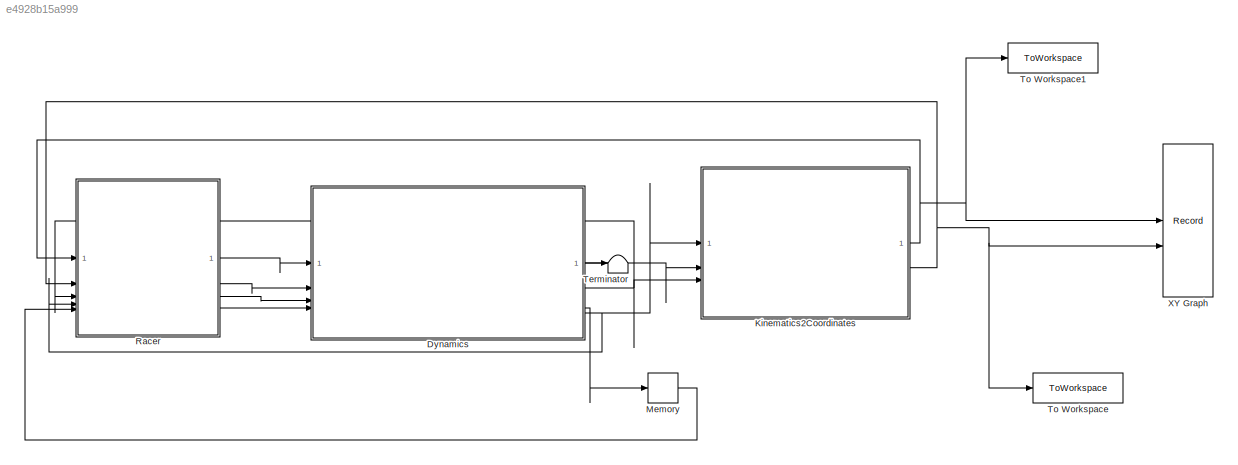
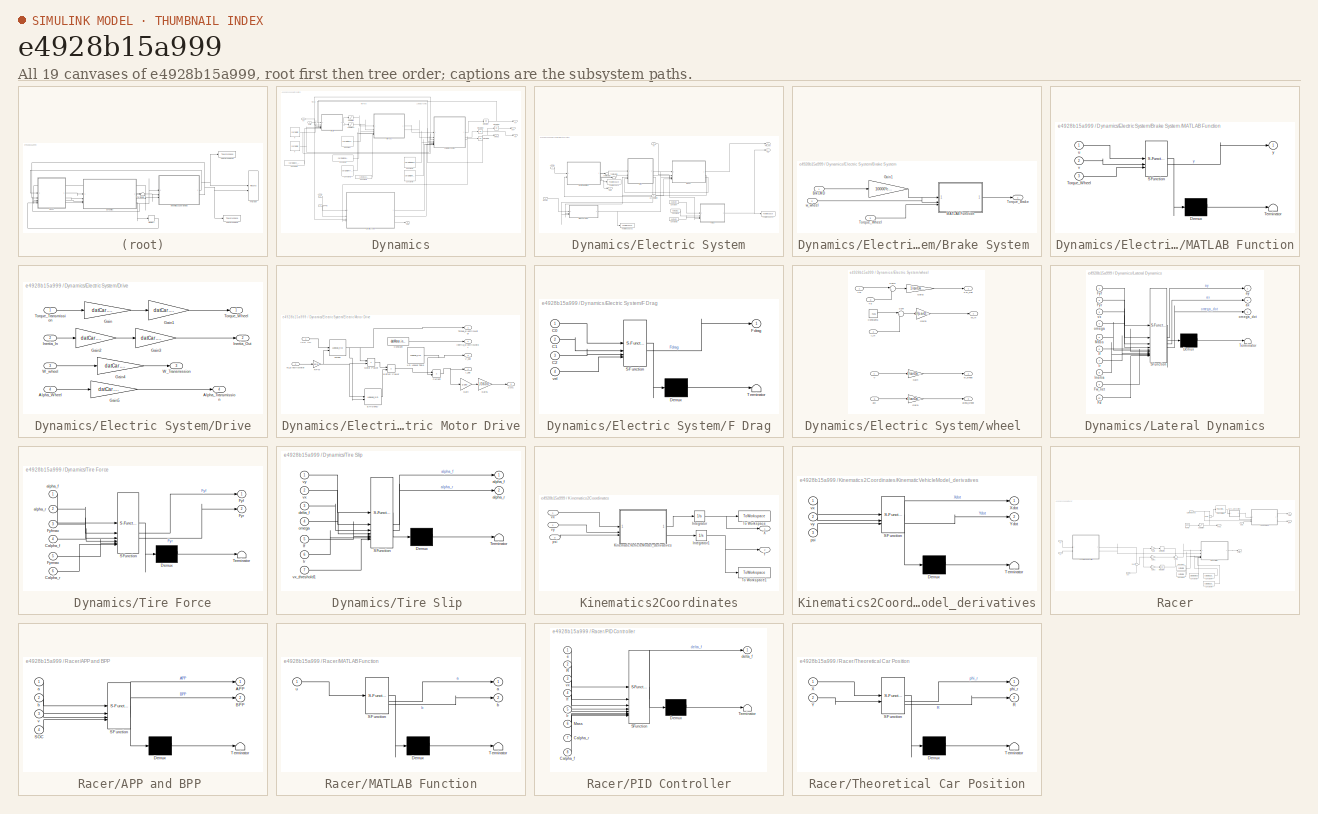
[diagram: thumbnail index - all 19 canvases of the model, root first then tree order]
MODEL slx_e4928b15a999
KIND model
CONFIG AbsTol = auto
CONFIG EnableMultiTasking = off
CONFIG FixedStep = auto
CONFIG MaxStep = auto
CONFIG MinStep = auto
CONFIG RelTol = 1e-3
CONFIG SampleTimeConstraint = Unconstrained
CONFIG SolverName = VariableStepAuto
CONFIG StartTime = 0.0
CONFIG StopTime = 6000
BLOCK [SubSystem] Dynamics
BLOCK [Inport] Dynamics/APP (%)
  Port = 3
BLOCK [Inport] Dynamics/BPP (%)
  Port = 4
BLOCK [Constant] Dynamics/Constant
  Value = carData.Fyfmax
BLOCK [Constant] Dynamics/Constant1
  Value = carData.Calpha_f
BLOCK [Constant] Dynamics/Constant2
  Value = carData.Fyrmax
BLOCK [Constant] Dynamics/Constant3
  Value = carData.Calpha_r
BLOCK [Constant] Dynamics/Constant4
  Value = carData.Mass
BLOCK [Constant] Dynamics/Constant5
  Value = carData.Inertia
BLOCK [Constant] Dynamics/Constant6
  Value = carData.vx_threshold1
BLOCK [SubSystem] Dynamics/Electric System
BLOCK [Inport] Dynamics/Electric System/APP (%)
BLOCK [Inport] Dynamics/Electric System/BPP (%)
  Port = 2
BLOCK [SubSystem] Dynamics/Electric System/Brake System 
BLOCK [Inport] Dynamics/Electric System/Brake System /BrkCMD 
BLOCK [Gain] Dynamics/Electric System/Brake System /Gain1
  Gain = 10000*carData.r
BLOCK [SubSystem] Dynamics/Electric System/Brake System /MATLAB Function
  ErrorFcn = Stateflow.Translate.translate
  PermitHierarchicalResolution = ExplicitOnly
  SFBlockType = MATLAB Function
  TreatAsAtomicUnit = on
BLOCK [Demux] Dynamics/Electric System/Brake System /MATLAB Function/ Demux 
  Outputs = 1
BLOCK [S-Function] Dynamics/Electric System/Brake System /MATLAB Function/ SFunction 
  EnableBusSupport = on
  FunctionName = sf_sfun
  PortCounts = [3 2]
  SFcnIsStateOwnerBlock = off
  SFunctionDeploymentMode = off
  Tag = Stateflow S-Function 4
BLOCK [Terminator] Dynamics/Electric System/Brake System /MATLAB Function/ Terminator 
BLOCK [Inport] Dynamics/Electric System/Brake System /MATLAB Function/Torque_Wheel
  Port = 3
BLOCK [Inport] Dynamics/Electric System/Brake System /MATLAB Function/u
BLOCK [Inport] Dynamics/Electric System/Brake System /MATLAB Function/v
  Port = 2
BLOCK [Outport] Dynamics/Electric System/Brake System /MATLAB Function/y
BLOCK [Outport] Dynamics/Electric System/Brake System /Torque_Brake 
  VectorParamsAs1DForOutWhenUnconnected = off
BLOCK [Inport] Dynamics/Electric System/Brake System /Torque_Wheel
  Port = 3
BLOCK [Inport] Dynamics/Electric System/Brake System /w_wheel 
  Port = 2
BLOCK [Constant] Dynamics/Electric System/Constant
  Value = datCar.C0
BLOCK [Constant] Dynamics/Electric System/Constant1
  Value = datCar.C1
BLOCK [Constant] Dynamics/Electric System/Constant2
  Value = datCar.C2
BLOCK [SubSystem] Dynamics/Electric System/Drive
BLOCK [Outport] Dynamics/Electric System/Drive/Alpha_Transmission
  Port = 4
BLOCK [Inport] Dynamics/Electric System/Drive/Alpha_Wheel
  Port = 4
BLOCK [Gain] Dynamics/Electric System/Drive/Gain
  Gain = datCar.FDRatio
BLOCK [Gain] Dynamics/Electric System/Drive/Gain1
  Gain = datCar.FDeta
BLOCK [Gain] Dynamics/Electric System/Drive/Gain2
  Gain = datCar.FDeta
BLOCK [Gain] Dynamics/Electric System/Drive/Gain3
  Gain = datCar.FDeta
BLOCK [Gain] Dynamics/Electric System/Drive/Gain4
  Gain = datCar.FDRatio
BLOCK [Gain] Dynamics/Electric System/Drive/Gain5
  Gain = datCar.FDRatio
BLOCK [Inport] Dynamics/Electric System/Drive/Inertia_In
  Port = 2
BLOCK [Outport] Dynamics/Electric System/Drive/Inertia_Out
  Port = 2
BLOCK [Inport] Dynamics/Electric System/Drive/Torque_Transmission
BLOCK [Outport] Dynamics/Electric System/Drive/Torque_Wheel
BLOCK [Outport] Dynamics/Electric System/Drive/W_Transmission
  Port = 3
BLOCK [Inport] Dynamics/Electric System/Drive/W_wheel
  Port = 3
BLOCK [SubSystem] Dynamics/Electric System/Electric Motor Drive
BLOCK [Lookup_n-D] Dynamics/Electric System/Electric Motor Drive/1-D Lookup Table
  BreakpointsForDimension1 = datBat.SOC
  InputPortMap = u0
  InternalRulePriority = Speed
  NumberOfTableDimensions = 1
  RndMeth = Simplest
  Table = datBat.OCV * datBat.numSeries
BLOCK [Inport] Dynamics/Electric System/Electric Motor Drive/APP (%)
BLOCK [Product] Dynamics/Electric System/Electric Motor Drive/Battery Power
  Inputs = */
BLOCK [Constant] Dynamics/Electric System/Electric Motor Drive/Constant
  Value = datMotor.inertia
BLOCK [Product] Dynamics/Electric System/Electric Motor Drive/Current
  Inputs = */
BLOCK [Lookup_n-D] Dynamics/Electric System/Electric Motor Drive/Efficiency
  BreakpointsForDimension1 = datMotor.eta_torque
  BreakpointsForDimension2 = datMotor.eta_speed
  InputPortMap = u0,u1
  InternalRulePriority = Speed
  RndMeth = Simplest
  Table = datMotor.eta_val
BLOCK [Gain] Dynamics/Electric System/Electric Motor Drive/Gain
  Gain = 1/150
BLOCK [Gain] Dynamics/Electric System/Electric Motor Drive/Gain1
  Gain = 1/3600
BLOCK [Outport] Dynamics/Electric System/Electric Motor Drive/I_bat
  Port = 4
BLOCK [Outport] Dynamics/Electric System/Electric Motor Drive/Inertia_ElectricMotor
  Port = 2
BLOCK [Product] Dynamics/Electric System/Electric Motor Drive/Motor Power
BLOCK [Gain] Dynamics/Electric System/Electric Motor Drive/RPM
  Gain = 60/2*pi
BLOCK [Outport] Dynamics/Electric System/Electric Motor Drive/SOC
  Port = 5
BLOCK [Lookup_n-D] Dynamics/Electric System/Electric Motor Drive/Torque
  BreakpointsForDimension1 = [0,25,50,75,100]
  BreakpointsForDimension2 = datMotor.rpm
  InputPortMap = u0,u1
  InternalRulePriority = Speed
  RndMeth = Simplest
  Table = datMotor.maxtorque
BLOCK [Outport] Dynamics/Electric System/Electric Motor Drive/Torque_ElectricMotor
BLOCK [Outport] Dynamics/Electric System/Electric Motor Drive/V_bat
  Port = 3
BLOCK [Inport] Dynamics/Electric System/Electric Motor Drive/W_ElectricMotor
  Port = 2
BLOCK [SubSystem] Dynamics/Electric System/F Drag
  ErrorFcn = Stateflow.Translate.translate
  PermitHierarchicalResolution = ExplicitOnly
  SFBlockType = MATLAB Function
  TreatAsAtomicUnit = on
BLOCK [Demux] Dynamics/Electric System/F Drag/ Demux 
  Outputs = 1
BLOCK [S-Function] Dynamics/Electric System/F Drag/ SFunction 
  EnableBusSupport = on
  FunctionName = sf_sfun
  PortCounts = [4 2]
  SFcnIsStateOwnerBlock = off
  SFunctionDeploymentMode = off
  Tag = Stateflow S-Function 1
BLOCK [Terminator] Dynamics/Electric System/F Drag/ Terminator 
BLOCK [Inport] Dynamics/Electric System/F Drag/C0
BLOCK [Inport] Dynamics/Electric System/F Drag/C1
  Port = 2
BLOCK [Inport] Dynamics/Electric System/F Drag/C2
  Port = 3
BLOCK [Outport] Dynamics/Electric System/F Drag/Fdrag
BLOCK [Inport] Dynamics/Electric System/F Drag/vel
  Port = 4
BLOCK [Outport] Dynamics/Electric System/Fd
  Port = 2
BLOCK [Outport] Dynamics/Electric System/Fw_net
BLOCK [Outport] Dynamics/Electric System/SOC
  Port = 3
BLOCK [Terminator] Dynamics/Electric System/Terminator2
BLOCK [Terminator] Dynamics/Electric System/Terminator3
BLOCK [ToWorkspace] Dynamics/Electric System/To Workspace
  FixptAsFi = on
  MaxDataPoints = inf
  SampleTime = -1
  SaveFormat = Timeseries
  VariableName = SOC
BLOCK [ToWorkspace] Dynamics/Electric System/To Workspace1
  FixptAsFi = on
  MaxDataPoints = inf
  SampleTime = -1
  SaveFormat = Timeseries
  VariableName = Faero
BLOCK [ToWorkspace] Dynamics/Electric System/To Workspace2
  FixptAsFi = on
  MaxDataPoints = inf
  SampleTime = -1
  SaveFormat = Timeseries
  VariableName = Brake_Torque
BLOCK [Inport] Dynamics/Electric System/Vx
  Port = 3
BLOCK [Inport] Dynamics/Electric System/acceleration
  Port = 4
BLOCK [SubSystem] Dynamics/Electric System/wheel 
BLOCK [Constant] Dynamics/Electric System/wheel /Constant6
  Value = .4536
BLOCK [Outport] Dynamics/Electric System/wheel /Fw_Net
BLOCK [Gain] Dynamics/Electric System/wheel /Gain
  Gain = 1/carData.r
BLOCK [Gain] Dynamics/Electric System/wheel /Gain1
  Gain = 1/carData.r
BLOCK [Gain] Dynamics/Electric System/wheel /Gain2
  Gain = 1/carData.r
BLOCK [Gain] Dynamics/Electric System/wheel /Gain3
  Gain = 1/(carData.r*carData.r)
BLOCK [Inport] Dynamics/Electric System/wheel /I_in
  Port = 2
BLOCK [Outport] Dynamics/Electric System/wheel /M_in
  Port = 4
BLOCK [Sum] Dynamics/Electric System/wheel /Sum
  Inputs = |++
BLOCK [Sum] Dynamics/Electric System/wheel /Sum1
  Inputs = |+-
BLOCK [Inport] Dynamics/Electric System/wheel /Tb
  Port = 3
BLOCK [Inport] Dynamics/Electric System/wheel /Tw
BLOCK [Inport] Dynamics/Electric System/wheel /V
  Port = 4
BLOCK [Inport] Dynamics/Electric System/wheel /acc
  Port = 5
BLOCK [Outport] Dynamics/Electric System/wheel /alpha_wheel
  Port = 3
BLOCK [Outport] Dynamics/Electric System/wheel /w_wheel
  Port = 2
BLOCK [Integrator] Dynamics/Integrator
  InitialCondition = carData.init.vy0
BLOCK [Integrator] Dynamics/Integrator1
  InitialCondition = carData.init.omega0
BLOCK [Integrator] Dynamics/Integrator2
  InitialCondition = carData.init.psi0
  WrappedStateLowerValue = 0
  WrappedStateUpperValue = 2*pi
BLOCK [Integrator] Dynamics/Integrator3
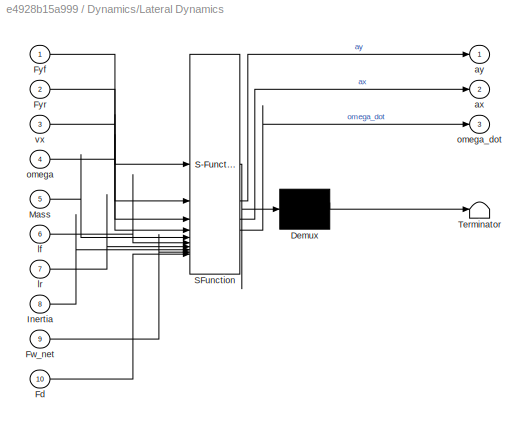
BLOCK [SubSystem] Dynamics/Lateral Dynamics
  ErrorFcn = Stateflow.Translate.translate
  PermitHierarchicalResolution = ExplicitOnly
  SFBlockType = MATLAB Function
  TreatAsAtomicUnit = on
BLOCK [Demux] Dynamics/Lateral Dynamics/ Demux 
  Outputs = 1
BLOCK [S-Function] Dynamics/Lateral Dynamics/ SFunction 
  EnableBusSupport = on
  FunctionName = sf_sfun
  PortCounts = [10 4]
  SFcnIsStateOwnerBlock = off
  SFunctionDeploymentMode = off
  Tag = Stateflow S-Function 7
BLOCK [Terminator] Dynamics/Lateral Dynamics/ Terminator 
BLOCK [Inport] Dynamics/Lateral Dynamics/Fd
  Port = 10
BLOCK [Inport] Dynamics/Lateral Dynamics/Fw_net
  Port = 9
BLOCK [Inport] Dynamics/Lateral Dynamics/Fyf
BLOCK [Inport] Dynamics/Lateral Dynamics/Fyr
  Port = 2
BLOCK [Inport] Dynamics/Lateral Dynamics/Inertia
  Port = 8
BLOCK [Inport] Dynamics/Lateral Dynamics/Mass
  Port = 5
BLOCK [Outport] Dynamics/Lateral Dynamics/ax
  Port = 2
BLOCK [Outport] Dynamics/Lateral Dynamics/ay
BLOCK [Inport] Dynamics/Lateral Dynamics/lf
  Port = 6
BLOCK [Inport] Dynamics/Lateral Dynamics/lr
  Port = 7
BLOCK [Inport] Dynamics/Lateral Dynamics/omega
  Port = 4
BLOCK [Outport] Dynamics/Lateral Dynamics/omega_dot
  Port = 3
BLOCK [Inport] Dynamics/Lateral Dynamics/vx
  Port = 3
BLOCK [Outport] Dynamics/SOC
  Port = 4
BLOCK [Saturate] Dynamics/Saturation
  LowerLimit = -carData.maxAlpha
  UpperLimit = carData.maxAlpha
BLOCK [Saturate] Dynamics/Saturation1
  LowerLimit = -carData.maxAlpha
  UpperLimit = carData.maxAlpha
BLOCK [SubSystem] Dynamics/Tire Force
  ErrorFcn = Stateflow.Translate.translate
  PermitHierarchicalResolution = ExplicitOnly
  SFBlockType = MATLAB Function
  TreatAsAtomicUnit = on
BLOCK [Demux] Dynamics/Tire Force/ Demux 
  Outputs = 1
BLOCK [S-Function] Dynamics/Tire Force/ SFunction 
  EnableBusSupport = on
  FunctionName = sf_sfun
  PortCounts = [6 3]
  SFcnIsStateOwnerBlock = off
  SFunctionDeploymentMode = off
  Tag = Stateflow S-Function 6
BLOCK [Terminator] Dynamics/Tire Force/ Terminator 
BLOCK [Inport] Dynamics/Tire Force/Calpha_f
  Port = 4
BLOCK [Inport] Dynamics/Tire Force/Calpha_r
  Port = 6
BLOCK [Outport] Dynamics/Tire Force/Fyf
BLOCK [Inport] Dynamics/Tire Force/Fyfmax
  Port = 3
BLOCK [Outport] Dynamics/Tire Force/Fyr
  Port = 2
BLOCK [Inport] Dynamics/Tire Force/Fyrmax
  Port = 5
BLOCK [Inport] Dynamics/Tire Force/alpha_f
BLOCK [Inport] Dynamics/Tire Force/alpha_r
  Port = 2
BLOCK [SubSystem] Dynamics/Tire Slip 
  ErrorFcn = Stateflow.Translate.translate
  PermitHierarchicalResolution = ExplicitOnly
  SFBlockType = MATLAB Function
  TreatAsAtomicUnit = on
BLOCK [Demux] Dynamics/Tire Slip / Demux 
  Outputs = 1
BLOCK [S-Function] Dynamics/Tire Slip / SFunction 
  EnableBusSupport = on
  FunctionName = sf_sfun
  PortCounts = [7 3]
  SFcnIsStateOwnerBlock = off
  SFunctionDeploymentMode = off
  Tag = Stateflow S-Function 2
BLOCK [Terminator] Dynamics/Tire Slip / Terminator 
BLOCK [Outport] Dynamics/Tire Slip /alpha_f
BLOCK [Outport] Dynamics/Tire Slip /alpha_r
  Port = 2
BLOCK [Inport] Dynamics/Tire Slip /delta_f
  Port = 3
BLOCK [Inport] Dynamics/Tire Slip /lf
  Port = 5
BLOCK [Inport] Dynamics/Tire Slip /lr
  Port = 6
BLOCK [Inport] Dynamics/Tire Slip /omega
  Port = 4
BLOCK [Inport] Dynamics/Tire Slip /vx
  Port = 2
BLOCK [Inport] Dynamics/Tire Slip /vx_threshold1
  Port = 7
BLOCK [Inport] Dynamics/Tire Slip /vy
BLOCK [Outport] Dynamics/Vx
  Port = 5
BLOCK [Inport] Dynamics/delta
BLOCK [Constant] Dynamics/lf
  Value = carData.lf
BLOCK [Constant] Dynamics/lr
  Value = carData.lr
BLOCK [Outport] Dynamics/omega
  Port = 3
BLOCK [Outport] Dynamics/psi
  Port = 2
BLOCK [Inport] Dynamics/vx
  Port = 2
BLOCK [Outport] Dynamics/vy
BLOCK [SubSystem] Kinematics2Coordinates
BLOCK [Integrator] Kinematics2Coordinates/Integrator
  InitialCondition = carData.init.X0
BLOCK [Integrator] Kinematics2Coordinates/Integrator1
  InitialCondition = carData.init.Y0
BLOCK [SubSystem] Kinematics2Coordinates/KinematicVehicleModel_derivatives
  ErrorFcn = Stateflow.Translate.translate
  PermitHierarchicalResolution = ExplicitOnly
  SFBlockType = MATLAB Function
  TreatAsAtomicUnit = on
BLOCK [Demux] Kinematics2Coordinates/KinematicVehicleModel_derivatives/ Demux 
  Outputs = 1
BLOCK [S-Function] Kinematics2Coordinates/KinematicVehicleModel_derivatives/ SFunction 
  EnableBusSupport = on
  FunctionName = sf_sfun
  PortCounts = [3 3]
  SFcnIsStateOwnerBlock = off
  SFunctionDeploymentMode = off
  Tag = Stateflow S-Function 5
BLOCK [Terminator] Kinematics2Coordinates/KinematicVehicleModel_derivatives/ Terminator 
BLOCK [Outport] Kinematics2Coordinates/KinematicVehicleModel_derivatives/Xdot
BLOCK [Outport] Kinematics2Coordinates/KinematicVehicleModel_derivatives/Ydot
  Port = 2
BLOCK [Inport] Kinematics2Coordinates/KinematicVehicleModel_derivatives/psi
  Port = 3
BLOCK [Inport] Kinematics2Coordinates/KinematicVehicleModel_derivatives/vx
BLOCK [Inport] Kinematics2Coordinates/KinematicVehicleModel_derivatives/vy
  Port = 2
BLOCK [ToWorkspace] Kinematics2Coordinates/To Workspace
  FixptAsFi = on
  MaxDataPoints = inf
  SampleTime = -1
  SaveFormat = Timeseries
  VariableName = X
BLOCK [ToWorkspace] Kinematics2Coordinates/To Workspace1
  FixptAsFi = on
  MaxDataPoints = inf
  SampleTime = -1
  SaveFormat = Timeseries
  VariableName = Y
BLOCK [Outport] Kinematics2Coordinates/X
BLOCK [Outport] Kinematics2Coordinates/Y
  Port = 2
BLOCK [Inport] Kinematics2Coordinates/psi
  Port = 3
BLOCK [Inport] Kinematics2Coordinates/vx
BLOCK [Inport] Kinematics2Coordinates/vy
  Port = 2
BLOCK [Memory] Memory
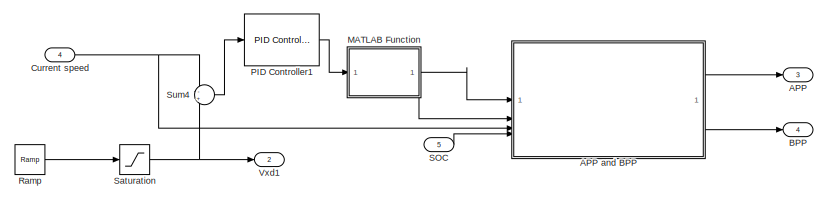
[diagram: Racer - part 1/2, top right region]
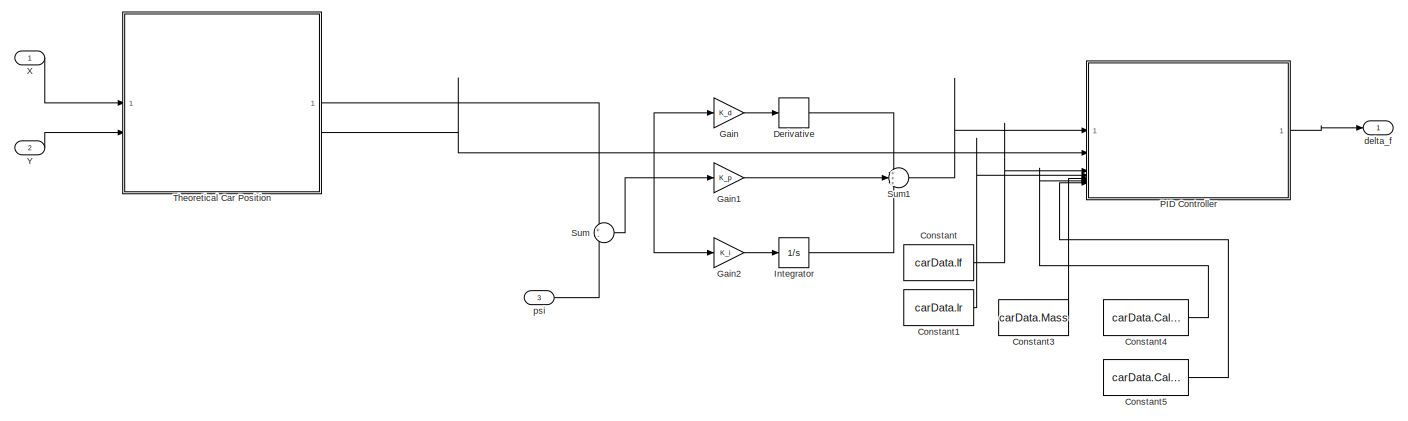
[diagram: Racer - part 2/2, full width, bottom band]
BLOCK [SubSystem] Racer
BLOCK [Inport] Racer/ Current speed
  Port = 4
BLOCK [Outport] Racer/APP
  Port = 3
BLOCK [SubSystem] Racer/APP and BPP 
  ErrorFcn = Stateflow.Translate.translate
  PermitHierarchicalResolution = ExplicitOnly
  SFBlockType = MATLAB Function
  TreatAsAtomicUnit = on
BLOCK [Demux] Racer/APP and BPP / Demux 
  Outputs = 1
BLOCK [S-Function] Racer/APP and BPP / SFunction 
  EnableBusSupport = on
  FunctionName = sf_sfun
  PortCounts = [4 3]
  SFcnIsStateOwnerBlock = off
  SFunctionDeploymentMode = off
  Tag = Stateflow S-Function 10
BLOCK [Terminator] Racer/APP and BPP / Terminator 
BLOCK [Outport] Racer/APP and BPP /APP
BLOCK [Outport] Racer/APP and BPP /BPP
  Port = 2
BLOCK [Inport] Racer/APP and BPP /SOC
  Port = 4
BLOCK [Inport] Racer/APP and BPP /a
BLOCK [Inport] Racer/APP and BPP /b
  Port = 2
BLOCK [Inport] Racer/APP and BPP /v
  Port = 3
BLOCK [Outport] Racer/BPP
  Port = 4
BLOCK [Constant] Racer/Constant
  Value = carData.lf
BLOCK [Constant] Racer/Constant1
  Value = carData.lr
BLOCK [Constant] Racer/Constant3
  Value = carData.Mass
BLOCK [Constant] Racer/Constant4
  Value = carData.Calpha_r
BLOCK [Constant] Racer/Constant5
  Value = carData.Calpha_f
BLOCK [Derivative] Racer/Derivative
BLOCK [Gain] Racer/Gain
  Gain = K_d
BLOCK [Gain] Racer/Gain1
  Gain = K_p
BLOCK [Gain] Racer/Gain2
  Gain = K_i
BLOCK [Integrator] Racer/Integrator
BLOCK [SubSystem] Racer/MATLAB Function
  ErrorFcn = Stateflow.Translate.translate
  PermitHierarchicalResolution = ExplicitOnly
  SFBlockType = MATLAB Function
  TreatAsAtomicUnit = on
BLOCK [Demux] Racer/MATLAB Function/ Demux 
  Outputs = 1
BLOCK [S-Function] Racer/MATLAB Function/ SFunction 
  EnableBusSupport = on
  FunctionName = sf_sfun
  PortCounts = [1 3]
  SFcnIsStateOwnerBlock = off
  SFunctionDeploymentMode = off
  Tag = Stateflow S-Function 11
BLOCK [Terminator] Racer/MATLAB Function/ Terminator 
BLOCK [Outport] Racer/MATLAB Function/a
BLOCK [Outport] Racer/MATLAB Function/b
  Port = 2
BLOCK [Inport] Racer/MATLAB Function/u
BLOCK [SubSystem] Racer/PID Controller
  ErrorFcn = Stateflow.Translate.translate
  PermitHierarchicalResolution = ExplicitOnly
  SFBlockType = MATLAB Function
  TreatAsAtomicUnit = on
BLOCK [Demux] Racer/PID Controller/ Demux 
  Outputs = 1
BLOCK [S-Function] Racer/PID Controller/ SFunction 
  EnableBusSupport = on
  FunctionName = sf_sfun
  PortCounts = [8 2]
  SFcnIsStateOwnerBlock = off
  SFunctionDeploymentMode = off
  Tag = Stateflow S-Function 8
BLOCK [Terminator] Racer/PID Controller/ Terminator 
BLOCK [Inport] Racer/PID Controller/Calpha_f
  Port = 8
BLOCK [Inport] Racer/PID Controller/Calpha_r
  Port = 7
BLOCK [Inport] Racer/PID Controller/Mass
  Port = 6
BLOCK [Inport] Racer/PID Controller/R
  Port = 2
BLOCK [Outport] Racer/PID Controller/delta_f
BLOCK [Inport] Racer/PID Controller/e
BLOCK [Inport] Racer/PID Controller/lf
  Port = 4
BLOCK [Inport] Racer/PID Controller/lr
  Port = 5
BLOCK [Inport] Racer/PID Controller/vx
  Port = 3
BLOCK [Reference] Racer/PID Controller1  REF=slpidlib/PID Controller
  LibrarySourceBlock = simulink/Continuous/PID Controller
  SourceBlock = slpidlib/PID Controller
  SourceType = PID 1dof
BLOCK [Reference] Racer/Ramp  REF=simulink/Sources/Ramp
  SourceBlock = simulink/Sources/Ramp
  SourceType = Ramp
BLOCK [Inport] Racer/SOC 
  Port = 5
BLOCK [Saturate] Racer/Saturation
  LowerLimit = 0
  UpperLimit = 10
BLOCK [Sum] Racer/Sum
  Inputs = +-
BLOCK [Sum] Racer/Sum1
  Inputs = +++
BLOCK [Sum] Racer/Sum4
  Inputs = -+
BLOCK [SubSystem] Racer/Theoretical Car Position
  ErrorFcn = Stateflow.Translate.translate
  PermitHierarchicalResolution = ExplicitOnly
  SFBlockType = MATLAB Function
  TreatAsAtomicUnit = on
BLOCK [Demux] Racer/Theoretical Car Position/ Demux 
  Outputs = 1
BLOCK [S-Function] Racer/Theoretical Car Position/ SFunction 
  EnableBusSupport = on
  FunctionName = sf_sfun
  PortCounts = [2 3]
  SFcnIsStateOwnerBlock = off
  SFunctionDeploymentMode = off
  Tag = Stateflow S-Function 3
BLOCK [Terminator] Racer/Theoretical Car Position/ Terminator 
BLOCK [Outport] Racer/Theoretical Car Position/R
  Port = 2
BLOCK [Inport] Racer/Theoretical Car Position/X
BLOCK [Inport] Racer/Theoretical Car Position/Y
  Port = 2
BLOCK [Outport] Racer/Theoretical Car Position/phi_r
BLOCK [Outport] Racer/Vxd1
  Port = 2
BLOCK [Inport] Racer/X
BLOCK [Inport] Racer/Y
  Port = 2
BLOCK [Outport] Racer/delta_f
BLOCK [Inport] Racer/psi
  Port = 3
BLOCK [Terminator] Terminator
BLOCK [ToWorkspace] To Workspace
  FixptAsFi = on
  MaxDataPoints = inf
  SampleTime = -1
  SaveFormat = Timeseries
  VariableName = y_val
BLOCK [ToWorkspace] To Workspace1
  FixptAsFi = on
  MaxDataPoints = inf
  SampleTime = -1
  SaveFormat = Timeseries
  VariableName = x_val
BLOCK [Record] XY Graph
  CompatibilityTag = XY
  FileSettingsInternal = {"entries":[{"content":{"excelSettings":{"content":{},"type":"Streamout.ExcelSettings"}},"type":"Streamout.FileSettingStorage","uuid":""}],"packageUris":["http:\/\/schema.mathworks.com\/mf0\/streamout_blocks\/R2020a"],"version":"1.0"}
  Layout = [1 1]
  SignalsInternal = {"entries":[{"content":{"signals":[{"content":{"blockPath":[],"dimensions":[1],"domain":"","lineColor":"#ff13a6","lineWidth":2,"port":1,"sid":[""],"signalID":1,"signalName":"Kinematics2Coordinates:1"},"type":"RecordBlkView.Signal","uuid":""},{"content":{"blockPath":[],"dimensions":[1],"domain":"","lineColor":"#139fff","plots":[ 1 ],"port":2,"sid":[""],"signalID":2,"signalName":"Kinematics2Coordina...<+194ch>
  VisualizationBindings = {"xyplotplugin":{"info":[{"series":[{"bindingParametersList":[{"parameter":"Y-Axis","signalID":2,"signalName":"Kinematics2Coordinates:2"}],"seriesID":0}],"subplotID":1}]}}
ANNOTATION Dynamics: Lateral Dynamics
ANNOTATION Dynamics: Tire Force
ANNOTATION Dynamics: Tire Slip
LINE Dynamics/APP (%):1 -> Dynamics/Electric System:1
LINE Dynamics/BPP (%):1 -> Dynamics/Electric System:2
LINE Dynamics/Constant1:1 -> Dynamics/Tire Force:4
LINE Dynamics/Constant2:1 -> Dynamics/Tire Force:5
LINE Dynamics/Constant3:1 -> Dynamics/Tire Force:6
LINE Dynamics/Constant4:1 -> Dynamics/Lateral Dynamics:5
LINE Dynamics/Constant5:1 -> Dynamics/Lateral Dynamics:8
LINE Dynamics/Constant6:1 -> Dynamics/Tire Slip :7
LINE Dynamics/Constant:1 -> Dynamics/Tire Force:3
LINE Dynamics/Electric System/APP (%):1 -> Dynamics/Electric System/Electric Motor Drive:1
LINE Dynamics/Electric System/BPP (%):1 -> Dynamics/Electric System/Brake System :1
LINE Dynamics/Electric System/Brake System /BrkCMD :1 -> Dynamics/Electric System/Brake System /Gain1:1
LINE Dynamics/Electric System/Brake System /Gain1:1 -> Dynamics/Electric System/Brake System /MATLAB Function:1
LINE Dynamics/Electric System/Brake System /MATLAB Function:1 -> Dynamics/Electric System/Brake System /Torque_Brake :1
LINE Dynamics/Electric System/Brake System /Torque_Wheel:1 -> Dynamics/Electric System/Brake System /MATLAB Function:3
LINE Dynamics/Electric System/Brake System /w_wheel :1 -> Dynamics/Electric System/Brake System /MATLAB Function:2
NET Dynamics/Electric System/Brake System :1 -> Dynamics/Electric System/To Workspace2:1, Dynamics/Electric System/wheel :3
LINE Dynamics/Electric System/Constant1:1 -> Dynamics/Electric System/F Drag:2
LINE Dynamics/Electric System/Constant2:1 -> Dynamics/Electric System/F Drag:3
LINE Dynamics/Electric System/Constant:1 -> Dynamics/Electric System/F Drag:1
LINE Dynamics/Electric System/Drive/Alpha_Wheel:1 -> Dynamics/Electric System/Drive/Gain5:1
LINE Dynamics/Electric System/Drive/Gain1:1 -> Dynamics/Electric System/Drive/Torque_Wheel:1
LINE Dynamics/Electric System/Drive/Gain2:1 -> Dynamics/Electric System/Drive/Gain3:1
LINE Dynamics/Electric System/Drive/Gain3:1 -> Dynamics/Electric System/Drive/Inertia_Out:1
LINE Dynamics/Electric System/Drive/Gain4:1 -> Dynamics/Electric System/Drive/W_Transmission:1
LINE Dynamics/Electric System/Drive/Gain5:1 -> Dynamics/Electric System/Drive/Alpha_Transmission:1
LINE Dynamics/Electric System/Drive/Gain:1 -> Dynamics/Electric System/Drive/Gain1:1
LINE Dynamics/Electric System/Drive/Inertia_In:1 -> Dynamics/Electric System/Drive/Gain2:1
LINE Dynamics/Electric System/Drive/Torque_Transmission:1 -> Dynamics/Electric System/Drive/Gain:1
LINE Dynamics/Electric System/Drive/W_wheel:1 -> Dynamics/Electric System/Drive/Gain4:1
NET Dynamics/Electric System/Drive:1 -> Dynamics/Electric System/Brake System :3, Dynamics/Electric System/wheel :1
LINE Dynamics/Electric System/Drive:2 -> Dynamics/Electric System/wheel :2
LINE Dynamics/Electric System/Drive:3 -> Dynamics/Electric System/Electric Motor Drive:2
NET Dynamics/Electric System/Electric Motor Drive/1-D Lookup Table:1 -> Dynamics/Electric System/Electric Motor Drive/Current:2, Dynamics/Electric System/Electric Motor Drive/V_bat:1
LINE Dynamics/Electric System/Electric Motor Drive/APP (%):1 -> Dynamics/Electric System/Electric Motor Drive/Torque:1
LINE Dynamics/Electric System/Electric Motor Drive/Battery Power:1 -> Dynamics/Electric System/Electric Motor Drive/Current:1
LINE Dynamics/Electric System/Electric Motor Drive/Constant:1 -> Dynamics/Electric System/Electric Motor Drive/Inertia_ElectricMotor:1
NET Dynamics/Electric System/Electric Motor Drive/Current:1 -> Dynamics/Electric System/Electric Motor Drive/Gain:1, Dynamics/Electric System/Electric Motor Drive/I_bat:1
LINE Dynamics/Electric System/Electric Motor Drive/Efficiency:1 -> Dynamics/Electric System/Electric Motor Drive/Battery Power:2
LINE Dynamics/Electric System/Electric Motor Drive/Gain1:1 -> Dynamics/Electric System/Electric Motor Drive/SOC:1
LINE Dynamics/Electric System/Electric Motor Drive/Gain:1 -> Dynamics/Electric System/Electric Motor Drive/Gain1:1
LINE Dynamics/Electric System/Electric Motor Drive/Motor Power:1 -> Dynamics/Electric System/Electric Motor Drive/Battery Power:1
NET Dynamics/Electric System/Electric Motor Drive/RPM:1 -> Dynamics/Electric System/Electric Motor Drive/Efficiency:1, Dynamics/Electric System/Electric Motor Drive/Motor Power:2, Dynamics/Electric System/Electric Motor Drive/Torque:2
NET Dynamics/Electric System/Electric Motor Drive/Torque:1 -> Dynamics/Electric System/Electric Motor Drive/Efficiency:2, Dynamics/Electric System/Electric Motor Drive/Motor Power:1, Dynamics/Electric System/Electric Motor Drive/Torque_ElectricMotor:1
LINE Dynamics/Electric System/Electric Motor Drive/W_ElectricMotor:1 -> Dynamics/Electric System/Electric Motor Drive/RPM:1
LINE Dynamics/Electric System/Electric Motor Drive:1 -> Dynamics/Electric System/Drive:1
LINE Dynamics/Electric System/Electric Motor Drive:2 -> Dynamics/Electric System/Drive:2
LINE Dynamics/Electric System/Electric Motor Drive:3 -> Dynamics/Electric System/Terminator2:1
LINE Dynamics/Electric System/Electric Motor Drive:4 -> Dynamics/Electric System/Terminator3:1
NET Dynamics/Electric System/Electric Motor Drive:5 -> Dynamics/Electric System/SOC:1, Dynamics/Electric System/To Workspace:1
NET Dynamics/Electric System/F Drag:1 -> Dynamics/Electric System/Fd:1, Dynamics/Electric System/To Workspace1:1
NET Dynamics/Electric System/Vx:1 -> Dynamics/Electric System/F Drag:4, Dynamics/Electric System/wheel :4
LINE Dynamics/Electric System/acceleration:1 -> Dynamics/Electric System/wheel :5
LINE Dynamics/Electric System/wheel /Constant6:1 -> Dynamics/Electric System/wheel /Sum:1
LINE Dynamics/Electric System/wheel /Gain1:1 -> Dynamics/Electric System/wheel /alpha_wheel:1
LINE Dynamics/Electric System/wheel /Gain2:1 -> Dynamics/Electric System/wheel /Fw_Net:1
LINE Dynamics/Electric System/wheel /Gain3:1 -> Dynamics/Electric System/wheel /M_in:1
LINE Dynamics/Electric System/wheel /Gain:1 -> Dynamics/Electric System/wheel /w_wheel:1
LINE Dynamics/Electric System/wheel /I_in:1 -> Dynamics/Electric System/wheel /Sum:2
LINE Dynamics/Electric System/wheel /Sum1:1 -> Dynamics/Electric System/wheel /Gain2:1
LINE Dynamics/Electric System/wheel /Sum:1 -> Dynamics/Electric System/wheel /Gain3:1
LINE Dynamics/Electric System/wheel /Tb:1 -> Dynamics/Electric System/wheel /Sum1:2
LINE Dynamics/Electric System/wheel /Tw:1 -> Dynamics/Electric System/wheel /Sum1:1
LINE Dynamics/Electric System/wheel /V:1 -> Dynamics/Electric System/wheel /Gain:1
LINE Dynamics/Electric System/wheel /acc:1 -> Dynamics/Electric System/wheel /Gain1:1
LINE Dynamics/Electric System/wheel :1 -> Dynamics/Electric System/Fw_net:1
NET Dynamics/Electric System/wheel :2 -> Dynamics/Electric System/Brake System :2, Dynamics/Electric System/Drive:3
LINE Dynamics/Electric System/wheel :3 -> Dynamics/Electric System/Drive:4
LINE Dynamics/Electric System:1 -> Dynamics/Lateral Dynamics:9
LINE Dynamics/Electric System:2 -> Dynamics/Lateral Dynamics:10
LINE Dynamics/Electric System:3 -> Dynamics/SOC:1
NET Dynamics/Integrator1:1 -> Dynamics/Integrator2:1, Dynamics/Lateral Dynamics:4, Dynamics/Tire Slip :4, Dynamics/omega:1
LINE Dynamics/Integrator2:1 -> Dynamics/psi:1
LINE Dynamics/Integrator3:1 -> Dynamics/Vx:1
NET Dynamics/Integrator:1 -> Dynamics/Tire Slip :1, Dynamics/vy:1
LINE Dynamics/Lateral Dynamics:1 -> Dynamics/Integrator:1
LINE Dynamics/Lateral Dynamics:2 -> Dynamics/Integrator3:1
NET Dynamics/Lateral Dynamics:3 -> Dynamics/Electric System:4, Dynamics/Integrator1:1
LINE Dynamics/Saturation1:1 -> Dynamics/Tire Force:2
LINE Dynamics/Saturation:1 -> Dynamics/Tire Force:1
LINE Dynamics/Tire Force:1 -> Dynamics/Lateral Dynamics:1
LINE Dynamics/Tire Force:2 -> Dynamics/Lateral Dynamics:2
LINE Dynamics/Tire Slip :1 -> Dynamics/Saturation:1
LINE Dynamics/Tire Slip :2 -> Dynamics/Saturation1:1
LINE Dynamics/delta:1 -> Dynamics/Tire Slip :3
NET Dynamics/lf:1 -> Dynamics/Lateral Dynamics:6, Dynamics/Tire Slip :5
NET Dynamics/lr:1 -> Dynamics/Lateral Dynamics:7, Dynamics/Tire Slip :6
NET Dynamics/vx:1 -> Dynamics/Electric System:3, Dynamics/Lateral Dynamics:3, Dynamics/Tire Slip :2
LINE Dynamics:1 -> Kinematics2Coordinates:2
NET Dynamics:2 -> Kinematics2Coordinates:3, Racer:3
LINE Dynamics:3 -> Terminator:1
LINE Dynamics:4 -> Memory:1
NET Dynamics:5 -> Kinematics2Coordinates:1, Racer:4
NET Kinematics2Coordinates/Integrator1:1 -> Kinematics2Coordinates/To Workspace1:1, Kinematics2Coordinates/Y:1
NET Kinematics2Coordinates/Integrator:1 -> Kinematics2Coordinates/To Workspace:1, Kinematics2Coordinates/X:1
LINE Kinematics2Coordinates/KinematicVehicleModel_derivatives:1 -> Kinematics2Coordinates/Integrator:1
LINE Kinematics2Coordinates/KinematicVehicleModel_derivatives:2 -> Kinematics2Coordinates/Integrator1:1
LINE Kinematics2Coordinates/psi:1 -> Kinematics2Coordinates/KinematicVehicleModel_derivatives:3
LINE Kinematics2Coordinates/vx:1 -> Kinematics2Coordinates/KinematicVehicleModel_derivatives:1
LINE Kinematics2Coordinates/vy:1 -> Kinematics2Coordinates/KinematicVehicleModel_derivatives:2
NET Kinematics2Coordinates:1 -> Racer:1, To Workspace1:1, XY Graph:1
NET Kinematics2Coordinates:2 -> Racer:2, To Workspace:1, XY Graph:2
LINE Memory:1 -> Racer:5
NET Racer/ Current speed:1 -> Racer/APP and BPP :3, Racer/Sum4:1
LINE Racer/APP and BPP :1 -> Racer/APP:1
LINE Racer/APP and BPP :2 -> Racer/BPP:1
LINE Racer/Constant1:1 -> Racer/PID Controller:5
LINE Racer/Constant3:1 -> Racer/PID Controller:6
LINE Racer/Constant4:1 -> Racer/PID Controller:7
LINE Racer/Constant5:1 -> Racer/PID Controller:8
LINE Racer/Constant:1 -> Racer/PID Controller:4
LINE Racer/Derivative:1 -> Racer/Sum1:1
LINE Racer/Gain1:1 -> Racer/Sum1:2
LINE Racer/Gain2:1 -> Racer/Integrator:1
LINE Racer/Gain:1 -> Racer/Derivative:1
LINE Racer/Integrator:1 -> Racer/Sum1:3
LINE Racer/MATLAB Function:1 -> Racer/APP and BPP :1
LINE Racer/MATLAB Function:2 -> Racer/APP and BPP :2
LINE Racer/PID Controller1:1 -> Racer/MATLAB Function:1
LINE Racer/PID Controller:1 -> Racer/delta_f:1
LINE Racer/Ramp:1 -> Racer/Saturation:1
LINE Racer/SOC :1 -> Racer/APP and BPP :4
NET Racer/Saturation:1 -> Racer/Sum4:2, Racer/Vxd1:1
LINE Racer/Sum1:1 -> Racer/PID Controller:1
LINE Racer/Sum4:1 -> Racer/PID Controller1:1
NET Racer/Sum:1 -> Racer/Gain1:1, Racer/Gain2:1, Racer/Gain:1
LINE Racer/Theoretical Car Position:1 -> Racer/Sum:1
LINE Racer/Theoretical Car Position:2 -> Racer/PID Controller:2
LINE Racer/X:1 -> Racer/Theoretical Car Position:1
LINE Racer/Y:1 -> Racer/Theoretical Car Position:2
LINE Racer/psi:1 -> Racer/Sum:2
LINE Racer:1 -> Dynamics:1
LINE Racer:2 -> Dynamics:2
LINE Racer:3 -> Dynamics:3
LINE Racer:4 -> Dynamics:4
note: NET lines group one-source signal fan-out (src -> all destinations, sorted); 1:1 wires keep LINE
CHART Racer/PID Controller states=1 transitions=1
  STATE_LABEL 'eML_blk_kernel()'
  STATE_LABEL 'SCRIPT:\nfunction delta_f = fcn(e, R, vx, lf, lr, Mass, Calpha_r, Calpha_f)\nL = lr + lf;\nif R ~= 0\n    delta_f = e + (L/R)+((Mass/(L*R))*((lr/Calpha_r)-(lf/Calpha_f))*(vx^2));\nelse\n    delta_f = e;\n\nend\n\n'
CHART Racer/APP and BPP  states=1 transitions=1
  STATE_LABEL 'eML_blk_kernel()'
  STATE_LABEL 'SCRIPT:\nfunction [APP, BPP] = fcn(a, b, v, SOC)\n\nmph2mps = 1600/3600; % mph to m/s conversion\nV_low = 5 * mph2mps;   \nV_high = 25 * mph2mps; \n\n%Initialize\nAPP = 0;\nBPP = 0;\n\nif b > 0 %If braking is requested\n    if v <= V_low\n        FrictionPercent = 1; %100% friction\n    elseif v < V_high\n        FrictionPercent = 1 - 0.95 * (v - V_low) / (V_high - V_low);\n    else\n        FrictionPercent = 0.05...<+346ch>'
CHART Racer/MATLAB Function states=1 transitions=1
  STATE_LABEL 'eML_blk_kernel()'
  STATE_LABEL 'SCRIPT:\nfunction [a, b] = fcn(u)\n\nif u >= 0\n    a = min(u, 100); \n    b = 0;           \nelse\n    a = 0;           \n    b = min(-u, 100);\nend\n\nend\n'
CHART Dynamics/Electric System/F Drag states=1 transitions=1
  STATE_LABEL 'eML_blk_kernel()'
  STATE_LABEL 'SCRIPT:\nfunction Fdrag = fcn(C0,C1,C2,vel)\n\nFdrag = C0 + C1*vel + C2*vel^2;\n'
CHART Dynamics/Tire Slip  states=1 transitions=1
  STATE_LABEL 'eML_blk_kernel()'
  STATE_LABEL 'SCRIPT:\nfunction [alpha_f, alpha_r] = fcn(vy,  vx, delta_f, omega, lf, lr, vx_threshold1)\n\n\nif abs(vx)> vx_threshold1\n      alpha_f = delta_f - (vy + omega * lf) / vx;\n      alpha_r = - (vy - omega * lr) / vx;\nelse\n      alpha_f = 0;\n      alpha_r = 0;\nend\n\n\n\nend'
CHART Racer/Theoretical Car Position states=1 transitions=1
  STATE_LABEL 'eML_blk_kernel()'
  STATE_LABEL 'SCRIPT:\nfunction [phi_r, R] = car_position(X, Y)\n\n    phi_r = 0;\n    R = 0;\n\n    if Y < 200\n        if X >= 0 && X <= 900\n            phi_r = 0; % first straight path from origin\n            R = 0;\n        elseif X > 900\n            val = (X - 900) / 200;\n            val = min(max(val, -1), 1); \n            phi_r = 2*pi - acos(val) - deg2rad(270); % first turn\n            R = 200;\n        elseif X...<+642ch>'
CHART Dynamics/Electric System/Brake System /MATLAB Function states=1 transitions=1
  STATE_LABEL 'eML_blk_kernel()'
  STATE_LABEL 'SCRIPT:\nfunction y = fcn(u,v,Torque_Wheel)\n    y_brake = u * v / (abs(v) + 0.001);  \n    y = y_brake - Torque_Wheel;\n    \n    if y < 0\n        y = 0;\n    end\nend\n'
CHART Kinematics2Coordinates/KinematicVehicleModel_derivatives states=1 transitions=1
  STATE_LABEL 'eML_blk_kernel()'
  STATE_LABEL 'SCRIPT:\nfunction [Xdot, Ydot] = fcn(vx, vy, psi)\n    temp = TF(psi) * [vx;vy]; \n    Xdot = temp(1);\n    Ydot = temp(2);\n  \nend\n\nfunction y = TF(psi)\n    y = [cos(psi), -sin(psi); sin(psi), cos(psi)];\nend\n\n'
CHART Dynamics/Tire Force states=1 transitions=1
  STATE_LABEL 'eML_blk_kernel()'
  STATE_LABEL 'SCRIPT:\nfunction [Fyf, Fyr] = fcn(alpha_f, alpha_r, Fyfmax, Calpha_f, Fyrmax, Calpha_r)\n\nFyf = min(Fyfmax,Calpha_f * alpha_f);\nFyr = min(Fyrmax, Calpha_r * alpha_r);\n\nend'
CHART Dynamics/Lateral Dynamics states=1 transitions=1
  STATE_LABEL 'eML_blk_kernel()'
  STATE_LABEL 'SCRIPT:\nfunction [ay, ax, omega_dot] = fcn(Fyf, Fyr, vx, omega, Mass, lf, lr, Inertia, Fw_net, Fd)\nFy = Fyf + Fyr;\nay = Fy / Mass - omega * vx;\n        \nM  = Fyf * lf - Fyr *lr;        \nomega_dot = M / Inertia;\n\nFx = Fw_net - Fd;       \nax = Fx / Mass;        \n\nend'
CHART  states=0 transitions=0
CHART  states=0 transitions=0
CHART  states=0 transitions=0
CHART  states=0 transitions=0
CHART  states=0 transitions=0
CHART  states=0 transitions=0
CHART  states=0 transitions=0
CHART  states=0 transitions=0
CHART  states=0 transitions=0
CHART  states=0 transitions=0
